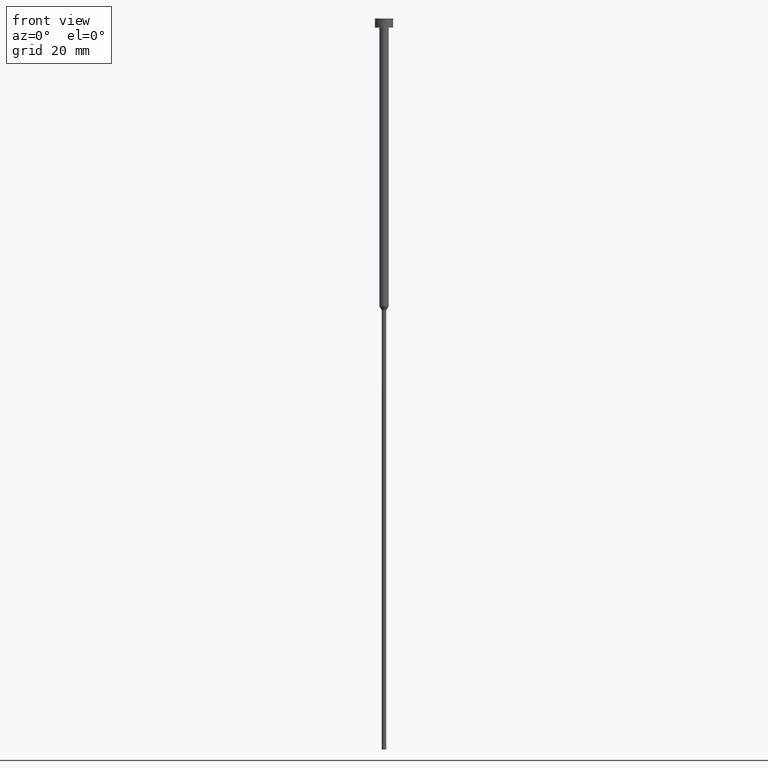
[diagram: clean part render]
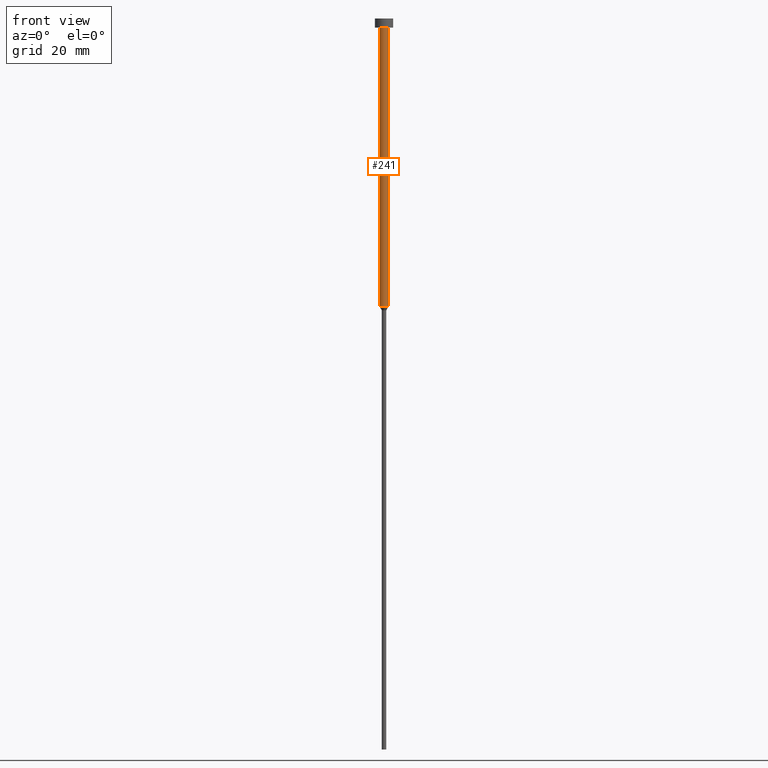
[diagram: same view with one face highlighted and labeled with its STEP entity id]
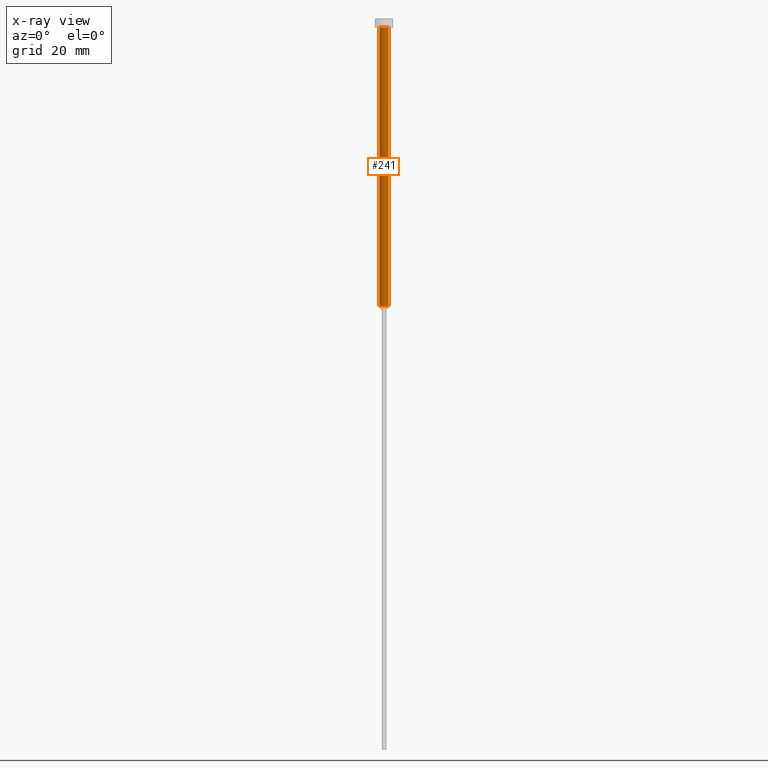
[diagram: x-ray of the same camera — body ghosted, the highlighted face saturated]
A machine part, front view. The second image highlights one B-rep face of the part: STEP entity #241.
The next image is the same camera in x-ray: the body ghosted, the highlighted face saturated — about 0% of this face is hidden behind the body in this view.
In plain terms, the highlighted cylindrical surface (edge-blend (fillet) strip) has radius 1 mm, axis along (-0, -0, 1).
Its self-contained STEP definition (entity closure, byte-faithful):
#1 = VECTOR ( 'NONE', #180, 1000.000000000000000 ) ;
#9 = FACE_OUTER_BOUND ( 'NONE', #208, .T. ) ;
#10 = ORIENTED_EDGE ( 'NONE', *, *, #172, .F. ) ;
#11 = CARTESIAN_POINT ( 'NONE',  ( -1.000000000000003331, 1.224646799147357151E-16, 0.000000000000000000 ) ) ;
#14 = CARTESIAN_POINT ( 'NONE',  ( 0.000000000000000000, 0.000000000000000000, 0.000000000000000000 ) ) ;
#17 = ORIENTED_EDGE ( 'NONE', *, *, #264, .F. ) ;
#21 = CARTESIAN_POINT ( 'NONE',  ( 1.000000000000003109, 0.000000000000000000, -63.00000000000000000 ) ) ;
#27 = DIRECTION ( 'NONE',  ( 1.000000000000000000, 0.000000000000000000, 0.000000000000000000 ) ) ;
#56 = EDGE_CURVE ( 'NONE', #119, #263, #327, .T. ) ;
#64 = DIRECTION ( 'NONE',  ( -0.000000000000000000, -0.000000000000000000, 1.000000000000000000 ) ) ;
#67 = CARTESIAN_POINT ( 'NONE',  ( 0.000000000000000000, 0.000000000000000000, -2.000000000000000444 ) ) ;
#69 = VERTEX_POINT ( 'NONE', #165 ) ;
#75 = VECTOR ( 'NONE', #64, 1000.000000000000000 ) ;
#91 = EDGE_CURVE ( 'NONE', #152, #119, #270, .T. ) ;
#94 = AXIS2_PLACEMENT_3D ( 'NONE', #67, #303, #339 ) ;
#118 = CARTESIAN_POINT ( 'NONE',  ( -1.000000000000003109, 1.224646799147356905E-16, -63.00000000000000000 ) ) ;
#119 = VERTEX_POINT ( 'NONE', #21 ) ;
#123 = LINE ( 'NONE', #11, #75 ) ;
#126 = ORIENTED_EDGE ( 'NONE', *, *, #56, .T. ) ;
#132 = CARTESIAN_POINT ( 'NONE',  ( 1.000000000000003331, 0.000000000000000000, 0.000000000000000000 ) ) ;
#133 = AXIS2_PLACEMENT_3D ( 'NONE', #14, #174, #286 ) ;
#149 = CYLINDRICAL_SURFACE ( 'NONE', #133, 1.000000000000003331 ) ;
#152 = VERTEX_POINT ( 'NONE', #118 ) ;
#159 = DIRECTION ( 'NONE',  ( -0.000000000000000000, -0.000000000000000000, 1.000000000000000000 ) ) ;
#165 = CARTESIAN_POINT ( 'NONE',  ( -1.000000000000003553, 1.224646799147357398E-16, -2.000000000000000444 ) ) ;
#172 = EDGE_CURVE ( 'NONE', #69, #263, #353, .T. ) ;
#174 = DIRECTION ( 'NONE',  ( -0.000000000000000000, -0.000000000000000000, 1.000000000000000000 ) ) ;
#180 = DIRECTION ( 'NONE',  ( -0.000000000000000000, -0.000000000000000000, 1.000000000000000000 ) ) ;
#208 = EDGE_LOOP ( 'NONE', ( #17, #219, #126, #10 ) ) ;
#219 = ORIENTED_EDGE ( 'NONE', *, *, #91, .T. ) ;
#227 = CARTESIAN_POINT ( 'NONE',  ( 1.000000000000003553, 0.000000000000000000, -2.000000000000000444 ) ) ;
#241 = ADVANCED_FACE ( 'NONE', ( #9 ), #149, .T. ) ;
#263 = VERTEX_POINT ( 'NONE', #227 ) ;
#264 = EDGE_CURVE ( 'NONE', #152, #69, #123, .T. ) ;
#270 = CIRCLE ( 'NONE', #338, 1.000000000000003109 ) ;
#273 = CARTESIAN_POINT ( 'NONE',  ( 0.000000000000000000, 0.000000000000000000, -63.00000000000000000 ) ) ;
#286 = DIRECTION ( 'NONE',  ( 1.000000000000000000, 0.000000000000000000, 0.000000000000000000 ) ) ;
#303 = DIRECTION ( 'NONE',  ( -0.000000000000000000, -0.000000000000000000, 1.000000000000000000 ) ) ;
#327 = LINE ( 'NONE', #132, #1 ) ;
#338 = AXIS2_PLACEMENT_3D ( 'NONE', #273, #159, #27 ) ;
#339 = DIRECTION ( 'NONE',  ( 1.000000000000000000, 0.000000000000000000, 0.000000000000000000 ) ) ;
#353 = CIRCLE ( 'NONE', #94, 1.000000000000003553 ) ;